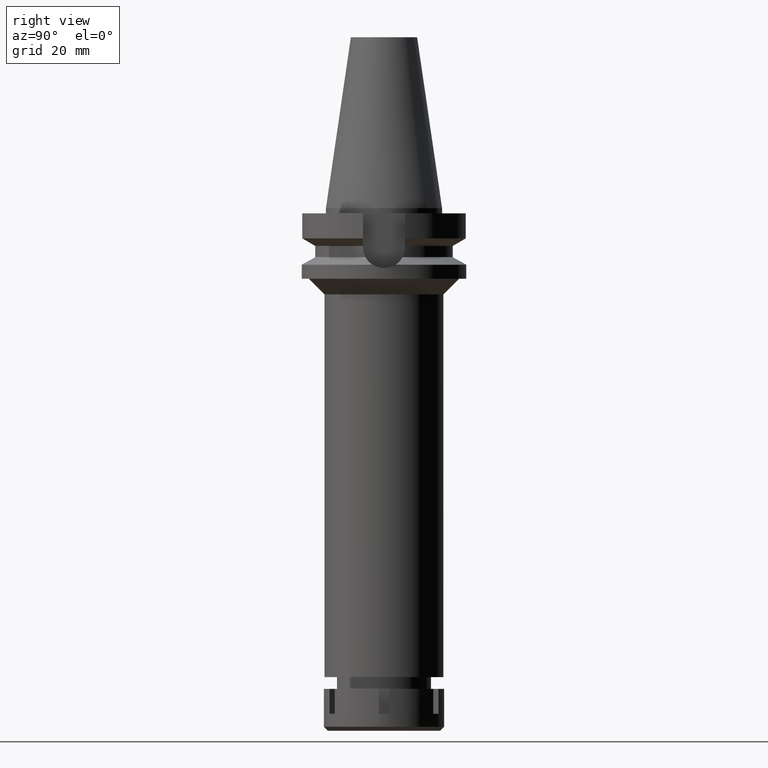
[diagram: clean part render]
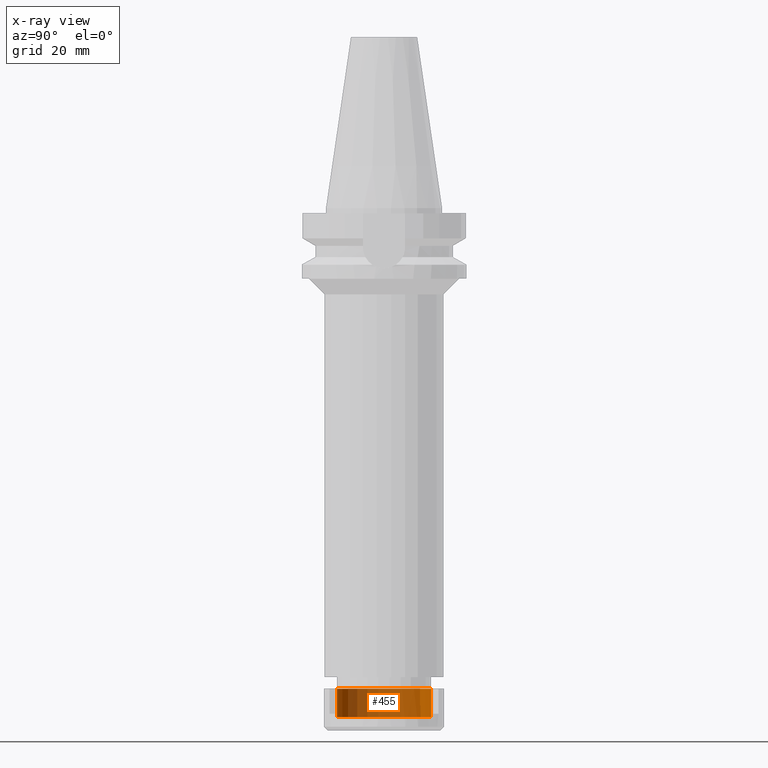
[diagram: x-ray — body ghosted, one internal face saturated and labeled with its STEP entity id]
A machine part, right view, then the same camera in x-ray: the body is ghosted and one INTERNAL B-rep face — a face not visible from any outside direction — is saturated and labeled: STEP entity #455.
In plain terms, the highlighted cylindrical surface (partial cylindrical patch) has radius 18 mm, axis along (0, 0, -1).
Its self-contained STEP definition (entity closure, byte-faithful):
#30 = CARTESIAN_POINT ( 'NONE',  ( 0.0000000000000000000, -18.00000000000000000, 0.0000000000000000000 ) ) ;
#42 = CIRCLE ( 'NONE', #1167, 18.00000000000000000 ) ;
#205 = VERTEX_POINT ( 'NONE', #30 ) ;
#293 = AXIS2_PLACEMENT_3D ( 'NONE', #1729, #1742, #1436 ) ;
#455 = ADVANCED_FACE ( 'NONE', ( #1685 ), #3625, .F. ) ;
#547 = DIRECTION ( 'NONE',  ( 0.0000000000000000000, 0.0000000000000000000, 1.000000000000000000 ) ) ;
#913 = CARTESIAN_POINT ( 'NONE',  ( 0.0000000000000000000, -18.00000000000000000, -10.80000000000000071 ) ) ;
#988 = DIRECTION ( 'NONE',  ( 0.0000000000000000000, 1.000000000000000000, 0.0000000000000000000 ) ) ;
#1072 = VECTOR ( 'NONE', #3181, 1000.000000000000000 ) ;
#1104 = ORIENTED_EDGE ( 'NONE', *, *, #3012, .T. ) ;
#1167 = AXIS2_PLACEMENT_3D ( 'NONE', #3468, #2844, #1775 ) ;
#1301 = CIRCLE ( 'NONE', #3345, 18.00000000000000000 ) ;
#1436 = DIRECTION ( 'NONE',  ( 0.0000000000000000000, -1.000000000000000000, 0.0000000000000000000 ) ) ;
#1462 = EDGE_CURVE ( 'NONE', #2079, #2370, #42, .T. ) ;
#1541 = DIRECTION ( 'NONE',  ( 0.0000000000000000000, 0.0000000000000000000, 1.000000000000000000 ) ) ;
#1685 = FACE_OUTER_BOUND ( 'NONE', #2758, .T. ) ;
#1729 = CARTESIAN_POINT ( 'NONE',  ( 0.0000000000000000000, 0.0000000000000000000, 0.0000000000000000000 ) ) ;
#1742 = DIRECTION ( 'NONE',  ( 0.0000000000000000000, 0.0000000000000000000, -1.000000000000000000 ) ) ;
#1775 = DIRECTION ( 'NONE',  ( 0.0000000000000000000, -1.000000000000000000, 0.0000000000000000000 ) ) ;
#1786 = CARTESIAN_POINT ( 'NONE',  ( 0.0000000000000000000, 0.0000000000000000000, 0.0000000000000000000 ) ) ;
#2028 = CARTESIAN_POINT ( 'NONE',  ( 0.0000000000000000000, 18.00000000000000000, 0.0000000000000000000 ) ) ;
#2079 = VERTEX_POINT ( 'NONE', #913 ) ;
#2120 = ORIENTED_EDGE ( 'NONE', *, *, #2881, .F. ) ;
#2370 = VERTEX_POINT ( 'NONE', #3037 ) ;
#2391 = CARTESIAN_POINT ( 'NONE',  ( 0.0000000000000000000, -18.00000000000000000, -10.80000000000000071 ) ) ;
#2604 = EDGE_CURVE ( 'NONE', #2370, #3290, #3043, .T. ) ;
#2758 = EDGE_LOOP ( 'NONE', ( #1104, #2120, #3270, #3606 ) ) ;
#2844 = DIRECTION ( 'NONE',  ( 0.0000000000000000000, 0.0000000000000000000, -1.000000000000000000 ) ) ;
#2881 = EDGE_CURVE ( 'NONE', #2079, #205, #3236, .T. ) ;
#3012 = EDGE_CURVE ( 'NONE', #3290, #205, #1301, .T. ) ;
#3027 = CARTESIAN_POINT ( 'NONE',  ( 0.0000000000000000000, 18.00000000000000000, -10.80000000000000071 ) ) ;
#3037 = CARTESIAN_POINT ( 'NONE',  ( 0.0000000000000000000, 18.00000000000000000, -10.80000000000000071 ) ) ;
#3043 = LINE ( 'NONE', #3027, #3465 ) ;
#3181 = DIRECTION ( 'NONE',  ( 0.0000000000000000000, 0.0000000000000000000, 1.000000000000000000 ) ) ;
#3236 = LINE ( 'NONE', #2391, #1072 ) ;
#3270 = ORIENTED_EDGE ( 'NONE', *, *, #1462, .T. ) ;
#3290 = VERTEX_POINT ( 'NONE', #2028 ) ;
#3345 = AXIS2_PLACEMENT_3D ( 'NONE', #1786, #1541, #988 ) ;
#3465 = VECTOR ( 'NONE', #547, 1000.000000000000000 ) ;
#3468 = CARTESIAN_POINT ( 'NONE',  ( 0.0000000000000000000, 0.0000000000000000000, -10.80000000000000071 ) ) ;
#3606 = ORIENTED_EDGE ( 'NONE', *, *, #2604, .T. ) ;
#3625 = CYLINDRICAL_SURFACE ( 'NONE', #293, 18.00000000000000000 ) ;